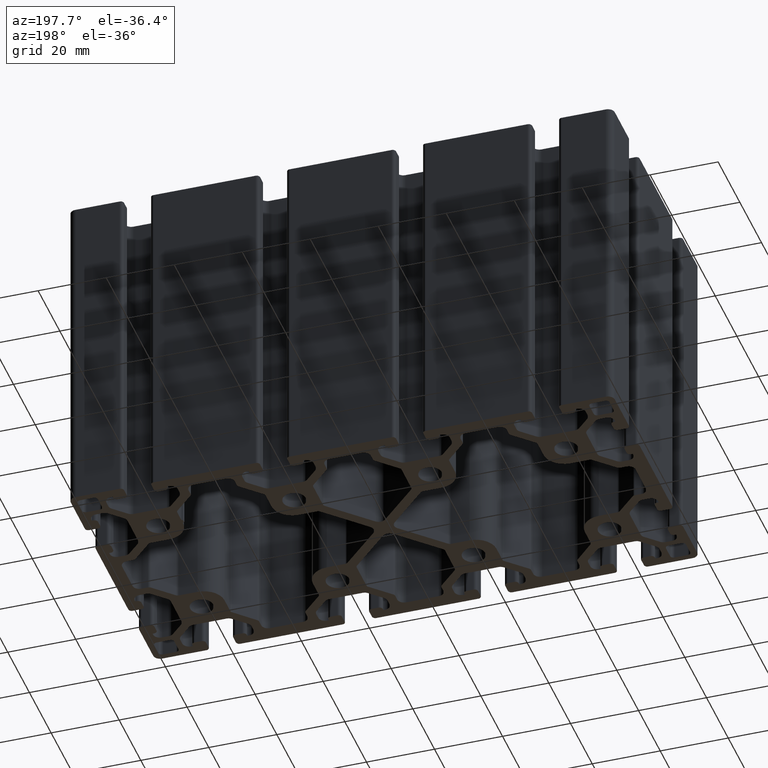
[diagram: clean part render]
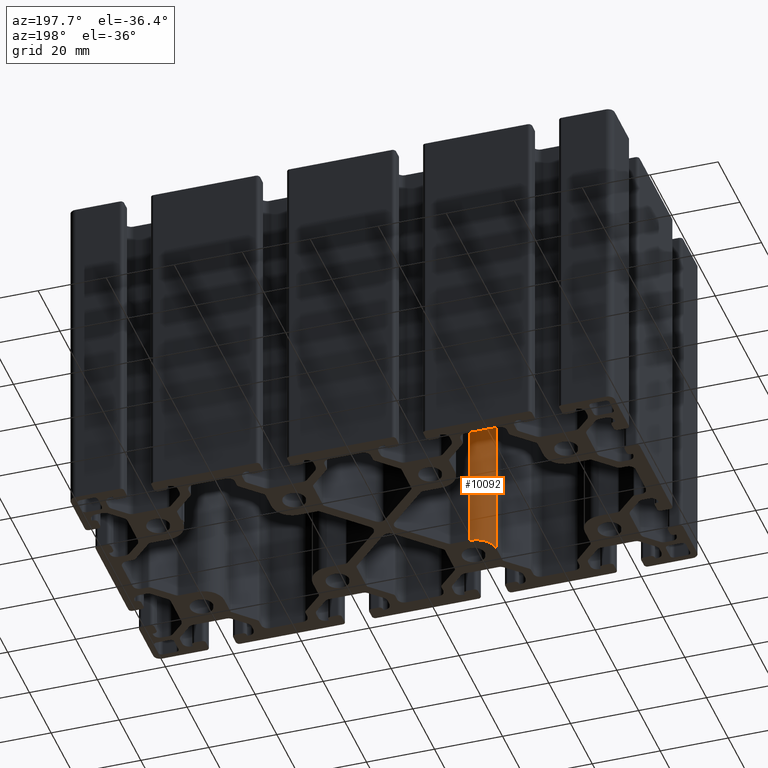
[diagram: same view with one face highlighted and labeled with its STEP entity id]
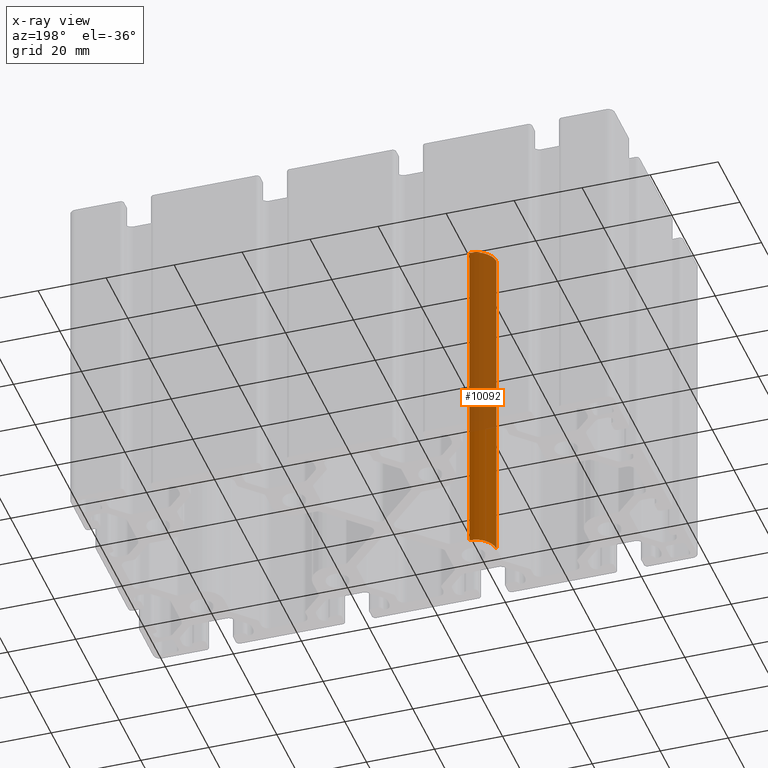
[diagram: x-ray of the same camera — body ghosted, the highlighted face saturated]
A machine part, auxiliary view. The second image highlights one B-rep face of the part: STEP entity #10092.
The next image is the same camera in x-ray: the body ghosted, the highlighted face saturated — about 61% of this face is hidden behind the body in this view.
In plain terms, the highlighted cylindrical surface (edge-blend (fillet) strip) has radius 6 mm, axis along (0, 0, -1).
Its self-contained STEP definition (entity closure, byte-faithful):
#773=FACE_OUTER_BOUND('',#1318,.T.);
#1318=EDGE_LOOP('',(#9195,#9196,#9197,#9198));
#2335=LINE('',#17043,#3352);
#2336=LINE('',#17045,#3353);
#3352=VECTOR('',#13980,100.);
#3353=VECTOR('',#13983,100.);
#3632=CIRCLE('',#10387,5.99999999999998);
#3869=CIRCLE('',#10625,5.99999999999998);
#4358=VERTEX_POINT('',#15091);
#4359=VERTEX_POINT('',#15093);
#4858=VERTEX_POINT('',#16096);
#4859=VERTEX_POINT('',#16098);
#5368=EDGE_CURVE('',#4359,#4358,#3632,.T.);
#5872=EDGE_CURVE('',#4858,#4859,#3869,.T.);
#6343=EDGE_CURVE('',#4359,#4858,#2335,.T.);
#6344=EDGE_CURVE('',#4358,#4859,#2336,.T.);
#9195=ORIENTED_EDGE('',*,*,#5872,.F.);
#9196=ORIENTED_EDGE('',*,*,#6343,.F.);
#9197=ORIENTED_EDGE('',*,*,#5368,.T.);
#9198=ORIENTED_EDGE('',*,*,#6344,.T.);
#9612=CYLINDRICAL_SURFACE('',#11083,5.99999999999998);
#10092=ADVANCED_FACE('',(#773),#9612,.T.);
#10387=AXIS2_PLACEMENT_3D('',#15094,#11867,#11868);
#10625=AXIS2_PLACEMENT_3D('',#16099,#12610,#12611);
#11083=AXIS2_PLACEMENT_3D('',#17044,#13981,#13982);
#11867=DIRECTION('center_axis',(0.,0.,-1.));
#11868=DIRECTION('ref_axis',(1.,0.,0.));
#12610=DIRECTION('center_axis',(0.,0.,-1.));
#12611=DIRECTION('ref_axis',(1.,0.,0.));
#13980=DIRECTION('',(0.,0.,-1.));
#13981=DIRECTION('center_axis',(0.,0.,-1.));
#13982=DIRECTION('ref_axis',(0.707106781186547,-0.707106781186548,0.));
#13983=DIRECTION('',(0.,0.,-1.));
#15091=CARTESIAN_POINT('',(-18.0502525310285,-12.9999999844987,100.));
#15093=CARTESIAN_POINT('',(-24.0502525310284,-18.9999999844987,100.));
#15094=CARTESIAN_POINT('Origin',(-18.0502525310284,-18.9999999844986,100.));
#16096=CARTESIAN_POINT('',(-24.0502525310284,-18.9999999844987,0.));
#16098=CARTESIAN_POINT('',(-18.0502525310285,-12.9999999844987,0.));
#16099=CARTESIAN_POINT('Origin',(-18.0502525310284,-18.9999999844986,0.));
#17043=CARTESIAN_POINT('',(-24.0502525310284,-18.9999999844987,100.));
#17044=CARTESIAN_POINT('Origin',(-18.0502525310284,-18.9999999844986,100.00000001));
#17045=CARTESIAN_POINT('',(-18.0502525310285,-12.9999999844987,100.));